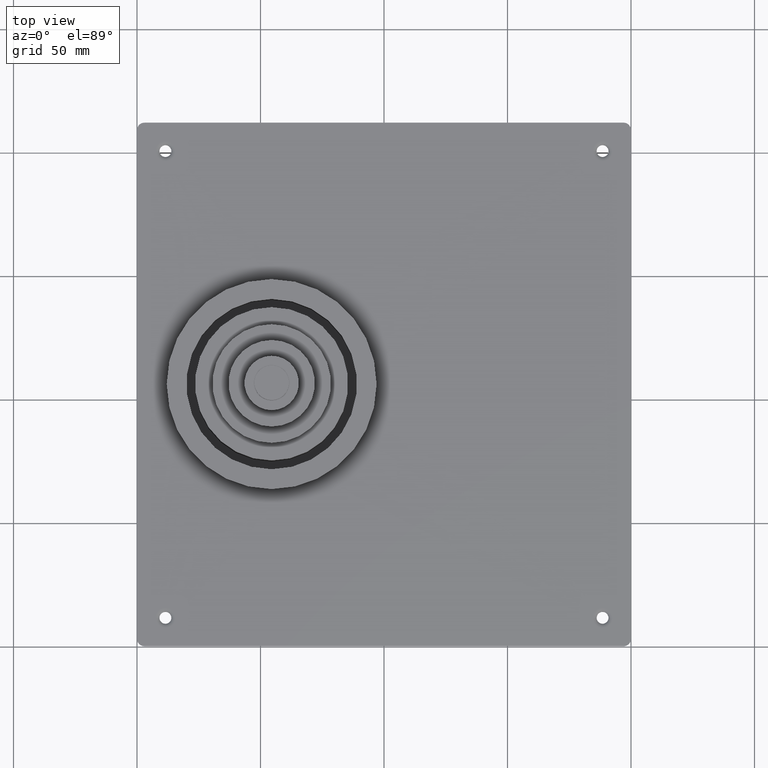
[diagram: clean part render]
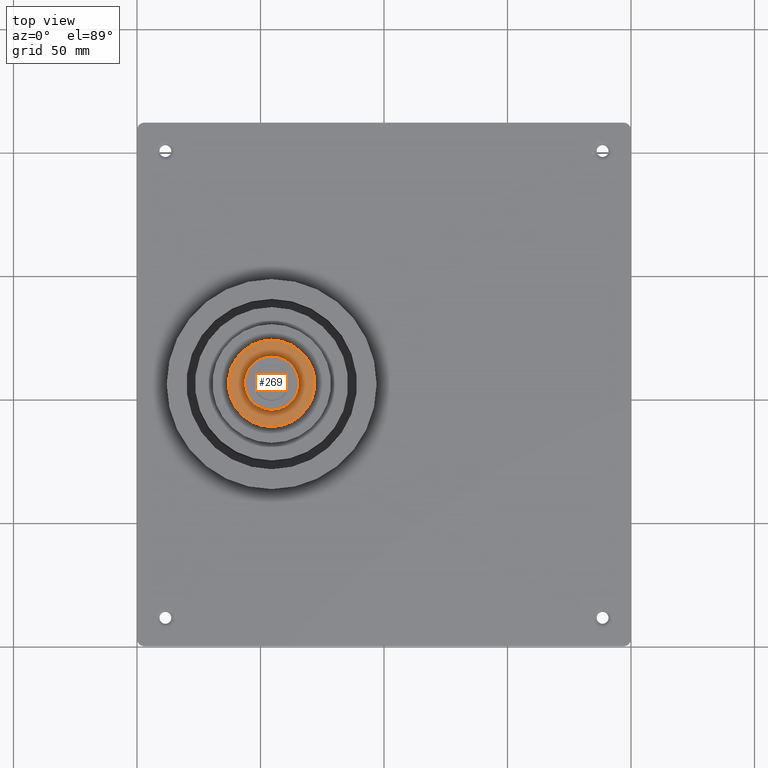
[diagram: same view with one face highlighted and labeled with its STEP entity id]
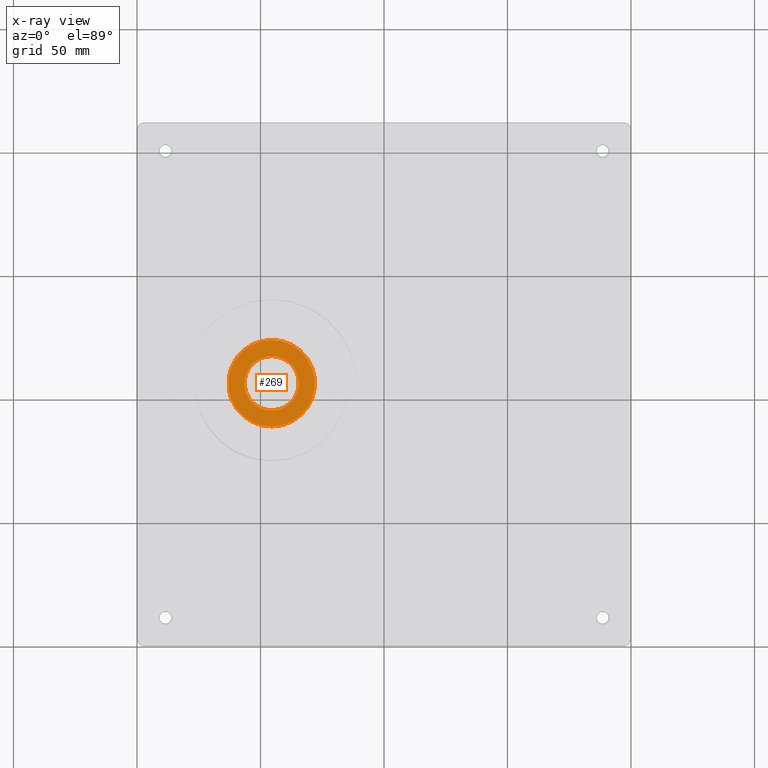
[diagram: x-ray of the same camera — body ghosted, the highlighted face saturated]
A machine part, top view. The second image highlights one B-rep face of the part: STEP entity #269.
The next image is the same camera in x-ray: the body ghosted, the highlighted face saturated — about 0% of this face is hidden behind the body in this view.
In plain terms, the highlighted planar face has unit normal (0, 0, 1).
Its self-contained STEP definition (entity closure, byte-faithful):
#269=ADVANCED_FACE('',(#542,#543),#544,.T.);
#542=FACE_OUTER_BOUND('',#828,.T.);
#543=FACE_BOUND('',#829,.T.);
#544=PLANE('',#830);
#828=EDGE_LOOP('',(#1403,#1404));
#829=EDGE_LOOP('',(#1405,#1406));
#830=AXIS2_PLACEMENT_3D('',#1407,#1408,#1409);
#1403=ORIENTED_EDGE('',*,*,#1767,.T.);
#1404=ORIENTED_EDGE('',*,*,#1839,.T.);
#1405=ORIENTED_EDGE('',*,*,#1835,.F.);
#1406=ORIENTED_EDGE('',*,*,#1840,.F.);
#1407=CARTESIAN_POINT('',(54.5,120.25,42.0));
#1408=DIRECTION('',(0.0,0.0,1.0));
#1409=DIRECTION('',(1.0,-0.0,0.0));
#1767=EDGE_CURVE('',#2099,#2103,#2105,.T.);
#1835=EDGE_CURVE('',#2220,#2223,#2224,.T.);
#1839=EDGE_CURVE('',#2103,#2099,#2229,.T.);
#1840=EDGE_CURVE('',#2223,#2220,#2230,.T.);
#2099=VERTEX_POINT('',#2525);
#2103=VERTEX_POINT('',#2530);
#2105=CIRCLE('',#2533,17.5);
#2220=VERTEX_POINT('',#2670);
#2223=VERTEX_POINT('',#2674);
#2224=CIRCLE('',#2675,11.0);
#2229=CIRCLE('',#2681,17.5);
#2230=CIRCLE('',#2682,11.0);
#2525=CARTESIAN_POINT('',(54.5,123.5,42.0));
#2530=CARTESIAN_POINT('',(54.5,88.5,42.0));
#2533=AXIS2_PLACEMENT_3D('',#2969,#2970,#2971);
#2670=CARTESIAN_POINT('',(54.5,117.0,42.0));
#2674=CARTESIAN_POINT('',(54.5,95.0,42.0));
#2675=AXIS2_PLACEMENT_3D('',#3085,#3086,#3087);
#2681=AXIS2_PLACEMENT_3D('',#3092,#3093,#3094);
#2682=AXIS2_PLACEMENT_3D('',#3095,#3096,#3097);
#2969=CARTESIAN_POINT('',(54.5,106.0,42.0));
#2970=DIRECTION('',(0.0,-0.0,1.0));
#2971=DIRECTION('',(0.0,1.0,0.0));
#3085=CARTESIAN_POINT('',(54.5,106.0,42.0));
#3086=DIRECTION('',(0.0,-0.0,1.0));
#3087=DIRECTION('',(0.0,1.0,0.0));
#3092=CARTESIAN_POINT('',(54.5,106.0,42.0));
#3093=DIRECTION('',(0.0,-0.0,1.0));
#3094=DIRECTION('',(0.0,1.0,0.0));
#3095=CARTESIAN_POINT('',(54.5,106.0,42.0));
#3096=DIRECTION('',(0.0,-0.0,1.0));
#3097=DIRECTION('',(0.0,1.0,0.0));